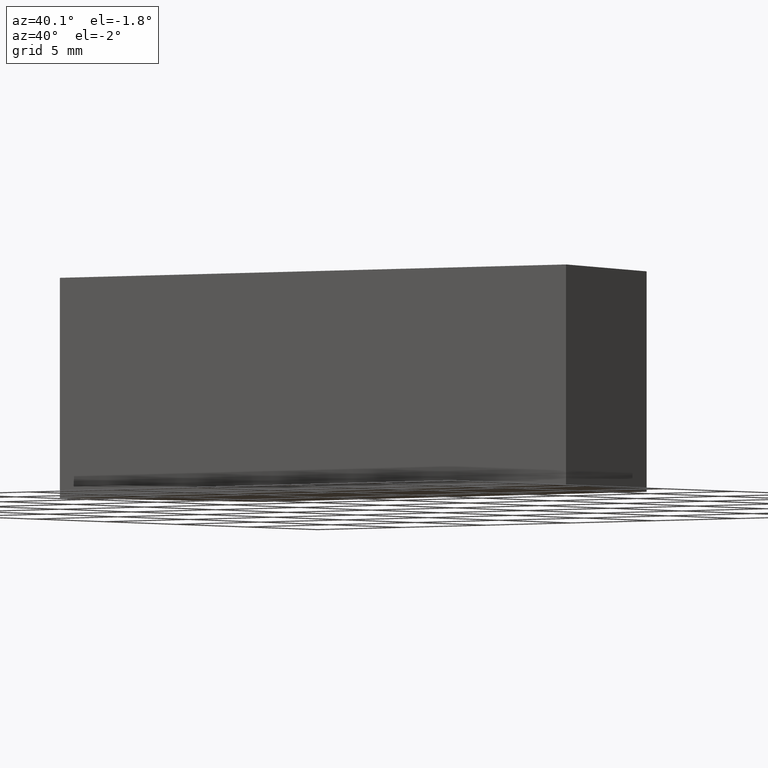
[diagram: clean part render]
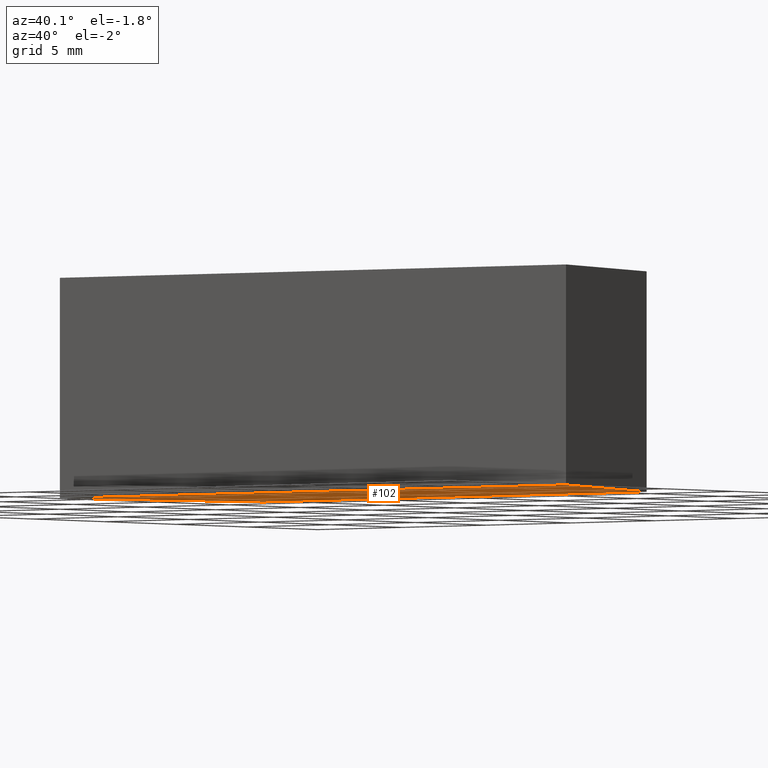
[diagram: same view with one face highlighted and labeled with its STEP entity id]
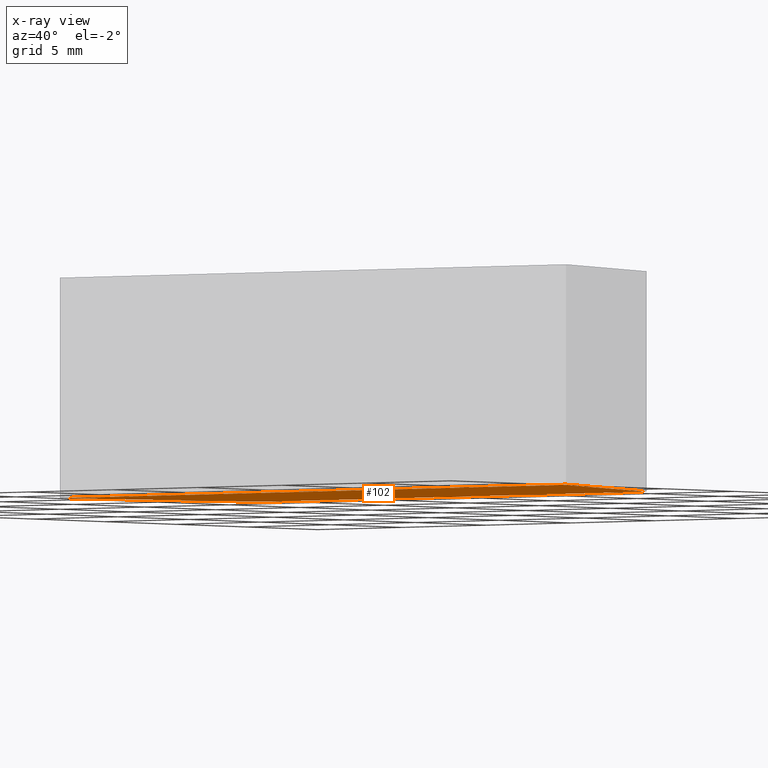
[diagram: x-ray of the same camera — body ghosted, the highlighted face saturated]
A machine part, auxiliary view. The second image highlights one B-rep face of the part: STEP entity #102.
The next image is the same camera in x-ray: the body ghosted, the highlighted face saturated — about 0% of this face is hidden behind the body in this view.
In plain terms, the highlighted planar face has unit normal (0, 0, 1).
Its self-contained STEP definition (entity closure, byte-faithful):
#16=FACE_OUTER_BOUND('',#22,.T.);
#22=EDGE_LOOP('',(#72,#73,#74,#75));
#28=LINE('',#167,#40);
#29=LINE('',#169,#41);
#30=LINE('',#171,#42);
#31=LINE('',#172,#43);
#40=VECTOR('',#141,10.);
#41=VECTOR('',#142,10.);
#42=VECTOR('',#143,10.);
#43=VECTOR('',#144,10.);
#52=VERTEX_POINT('',#165);
#53=VERTEX_POINT('',#166);
#54=VERTEX_POINT('',#168);
#55=VERTEX_POINT('',#170);
#60=EDGE_CURVE('',#52,#53,#28,.T.);
#61=EDGE_CURVE('',#54,#52,#29,.T.);
#62=EDGE_CURVE('',#55,#54,#30,.T.);
#63=EDGE_CURVE('',#53,#55,#31,.T.);
#72=ORIENTED_EDGE('',*,*,#60,.F.);
#73=ORIENTED_EDGE('',*,*,#61,.F.);
#74=ORIENTED_EDGE('',*,*,#62,.F.);
#75=ORIENTED_EDGE('',*,*,#63,.F.);
#96=PLANE('',#131);
#102=ADVANCED_FACE('',(#16),#96,.F.);
#131=AXIS2_PLACEMENT_3D('',#164,#139,#140);
#139=DIRECTION('center_axis',(0.,0.,1.));
#140=DIRECTION('ref_axis',(1.,0.,0.));
#141=DIRECTION('',(-0.34204484166827,0.939683630956785,0.));
#142=DIRECTION('',(1.,0.,0.));
#143=DIRECTION('',(-0.34204484166827,-0.939683630956785,0.));
#144=DIRECTION('',(-1.,0.,0.));
#164=CARTESIAN_POINT('Origin',(5.55111512312578E-16,-0.491866905940554,
-5.));
#165=CARTESIAN_POINT('',(15.,-5.,-5.));
#166=CARTESIAN_POINT('',(11.36,5.,-5.));
#167=CARTESIAN_POINT('',(11.36,5.,-5.));
#168=CARTESIAN_POINT('',(-15.,-5.,-5.));
#169=CARTESIAN_POINT('',(15.,-5.,-5.));
#170=CARTESIAN_POINT('',(-11.36,5.,-5.));
#171=CARTESIAN_POINT('',(-15.,-5.,-5.));
#172=CARTESIAN_POINT('',(-11.36,5.,-5.));